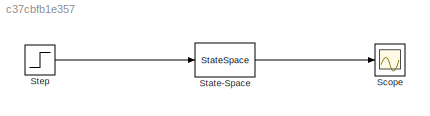
MODEL slx_c37cbfb1e357
KIND model
CONFIG AbsTol = auto
CONFIG EnableMultiTasking = off
CONFIG FixedStep = auto
CONFIG MaxStep = auto
CONFIG MinStep = auto
CONFIG RelTol = 1e-3
CONFIG SampleTimeConstraint = Unconstrained
CONFIG SolverName = VariableStepAuto
CONFIG StartTime = 0.0
CONFIG StopTime = 25
BLOCK [Scope] Scope
  Floating = off
  NumInputPorts = 1
  ScopeSpecificationString = Simulink.scopes.TimeScopeBlockCfg('CurrentConfiguration', extmgr.ConfigurationSet(extmgr.Configuration('Core','General UI',true),extmgr.Configuration('Core','Source UI',true),extmgr.Configuration('Sources','WiredSimulink',true),extmgr.Configuration('Visuals','Time Domain',true,'SerializedDisplays',{struct('MinYLimReal','-0.0632','MaxYLimReal','0.17544','YLabelReal','','MinYLimMag','0.00000','MaxYL...<+1383ch>
BLOCK [StateSpace] State-Space
  A = [0 1 0 0;0 0 1 0;0 0 0 1; -1 -2 -10 -4]
  B = [0;0;0;1]
  C = [0 0 0 1]
  D = 0
  InitialCondition = 0
BLOCK [Step] Step
  SampleTime = 0
LINE State-Space:1 -> Scope:1
LINE Step:1 -> State-Space:1
